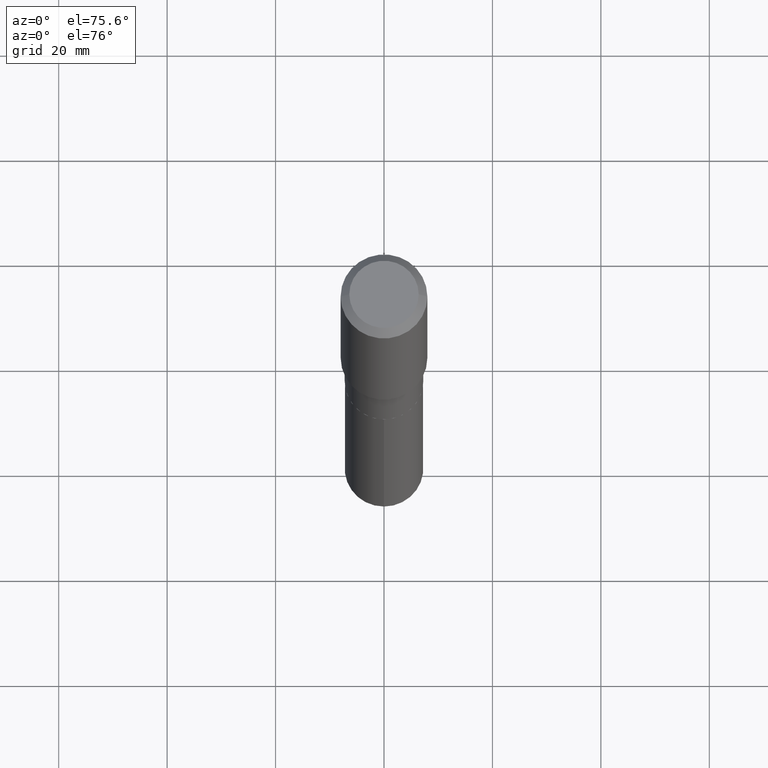
[diagram: clean part render]
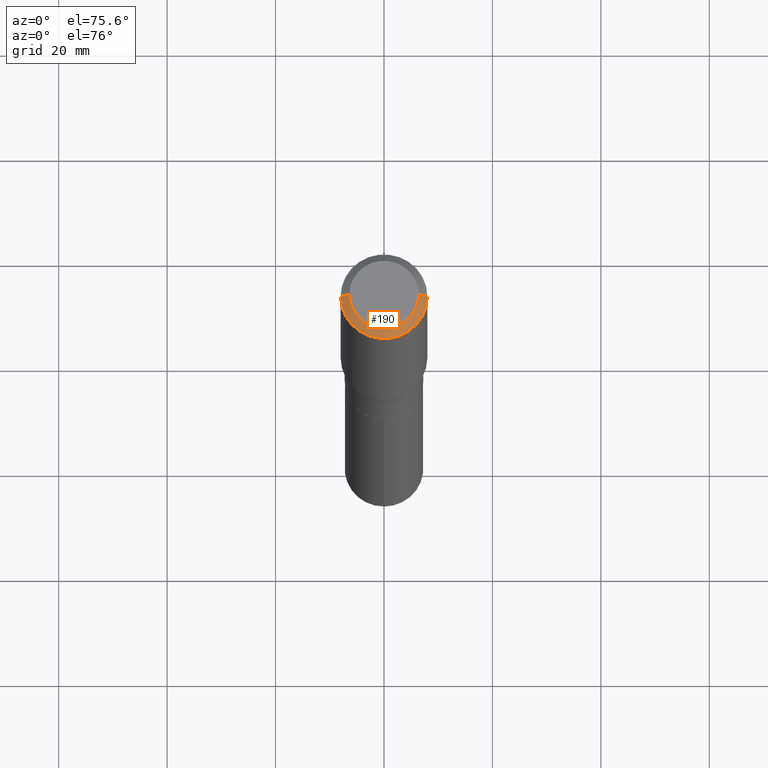
[diagram: same view with one face highlighted and labeled with its STEP entity id]
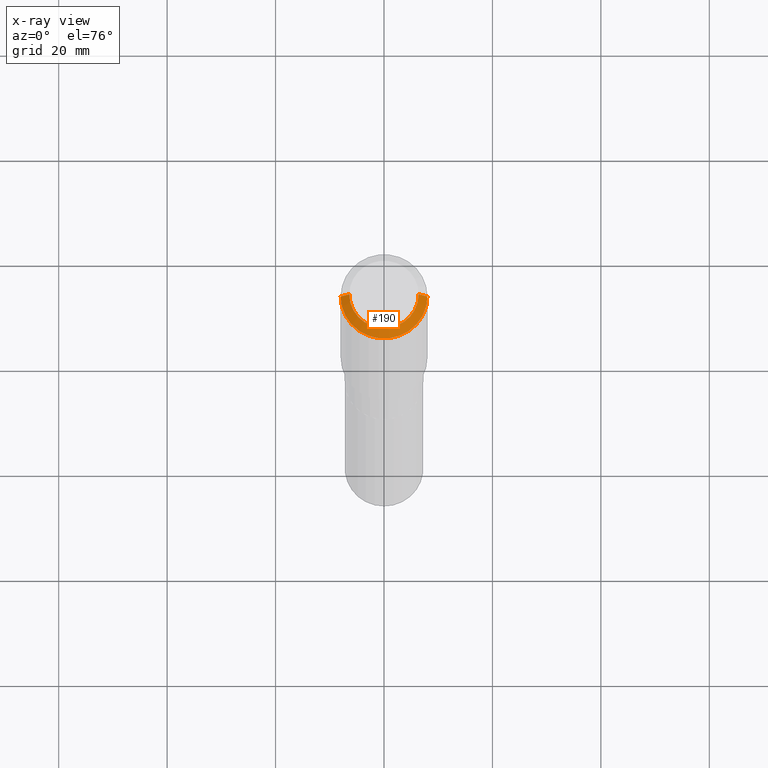
[diagram: x-ray of the same camera — body ghosted, the highlighted face saturated]
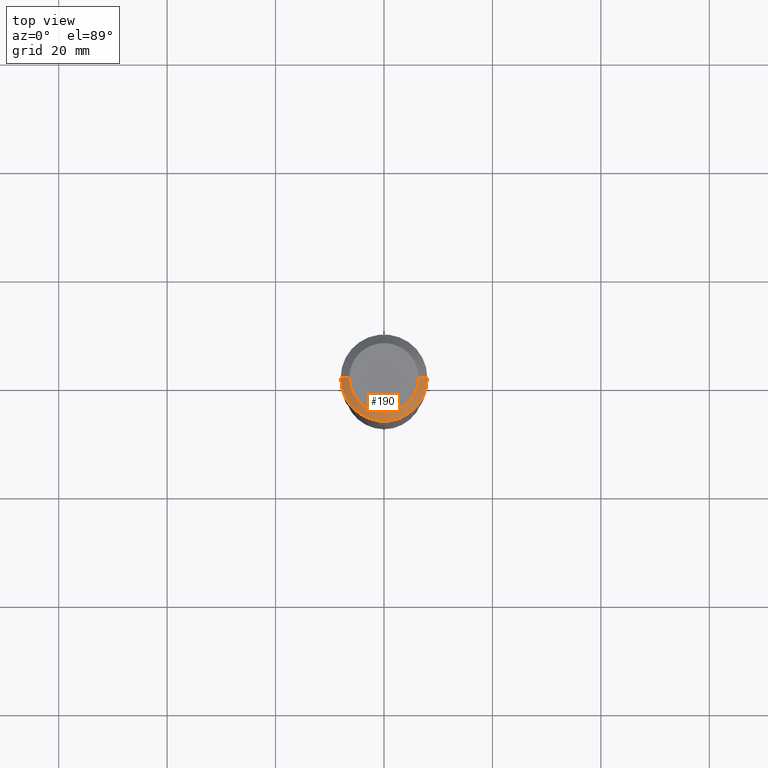
[diagram: same view with one face highlighted and labeled with its STEP entity id]
A machine part, auxiliary view. The second image highlights one B-rep face of the part: STEP entity #190.
The next image is the same camera in x-ray: the body ghosted, the highlighted face saturated — about 0% of this face is hidden behind the body in this view.
A second angle (top view) of the same face is appended — the face is thin or edge-on in the first view.
In plain terms, the highlighted conical surface has half-angle 45 deg.
Its self-contained STEP definition (entity closure, byte-faithful):
#7 = DIRECTION ( 'NONE',  ( 1.000000000000000000, -6.982962677686266711E-15, 0.000000000000000000 ) ) ;
#11 = ORIENTED_EDGE ( 'NONE', *, *, #407, .T. ) ;
#13 = FACE_OUTER_BOUND ( 'NONE', #162, .T. ) ;
#21 = DIRECTION ( 'NONE',  ( -1.000000000000000000, 6.982962677686266711E-15, 0.000000000000000000 ) ) ;
#43 = CARTESIAN_POINT ( 'NONE',  ( -0.2519600000000000173, 1.869391481036695286E-15, 3.855188123703182704E-18 ) ) ;
#61 = AXIS2_PLACEMENT_3D ( 'NONE', #358, #166, #321 ) ;
#79 = CARTESIAN_POINT ( 'NONE',  ( -0.3149500000000000077, 1.979355685803558833E-15, -0.06299000000000037902 ) ) ;
#82 = CARTESIAN_POINT ( 'NONE',  ( 0.3149500000000000077, -2.419212504871020909E-15, -0.06299000000000037902 ) ) ;
#92 = CARTESIAN_POINT ( 'NONE',  ( -0.3149500000000000077, -1.107665615196371650E-15, -0.06299000000000037902 ) ) ;
#97 = CARTESIAN_POINT ( 'NONE',  ( 0.3149500000000000077, -2.380642253931875190E-15, -0.06299000000000037902 ) ) ;
#138 = LINE ( 'NONE', #97, #445 ) ;
#158 = DIRECTION ( 'NONE',  ( -0.7071067811865453523, 2.468850131082234184E-15, -0.7071067811865496822 ) ) ;
#162 = EDGE_LOOP ( 'NONE', ( #337, #417, #230, #11 ) ) ;
#166 = DIRECTION ( 'NONE',  ( -2.445468806185136597E-29, 3.491481338843145583E-15, 1.000000000000000000 ) ) ;
#177 = VERTEX_POINT ( 'NONE', #92 ) ;
#190 = ADVANCED_FACE ( 'NONE', ( #13 ), #429, .T. ) ;
#208 = DIRECTION ( 'NONE',  ( 2.445468806185136597E-29, -3.491481338843145583E-15, -1.000000000000000000 ) ) ;
#219 = EDGE_CURVE ( 'NONE', #415, #478, #224, .T. ) ;
#224 = CIRCLE ( 'NONE', #61, 0.2519600000000000173 ) ;
#230 = ORIENTED_EDGE ( 'NONE', *, *, #418, .T. ) ;
#249 = EDGE_CURVE ( 'NONE', #478, #438, #138, .T. ) ;
#263 = AXIS2_PLACEMENT_3D ( 'NONE', #363, #208, #21 ) ;
#292 = DIRECTION ( 'NONE',  ( 0.7071067811865453523, -7.319954787623248157E-15, -0.7071067811865496822 ) ) ;
#321 = DIRECTION ( 'NONE',  ( 1.000000000000000000, -6.982962677686266711E-15, 4.876115136096691995E-29 ) ) ;
#337 = ORIENTED_EDGE ( 'NONE', *, *, #249, .F. ) ;
#349 = CARTESIAN_POINT ( 'NONE',  ( 1.540400801016026505E-30, -2.199284095337310628E-16, -0.06299000000000037902 ) ) ;
#358 = CARTESIAN_POINT ( 'NONE',  ( -9.427742298522569579E-47, 1.346031739168368629E-32, 3.855188123715871501E-18 ) ) ;
#363 = CARTESIAN_POINT ( 'NONE',  ( 1.540400801016026505E-30, -2.199284095337310628E-16, -0.06299000000000037902 ) ) ;
#385 = DIRECTION ( 'NONE',  ( -2.445468806185136597E-29, 3.491481338843145583E-15, 1.000000000000000000 ) ) ;
#387 = CARTESIAN_POINT ( 'NONE',  ( 0.2519600000000000173, -2.054606664725195058E-15, 3.855188123729206640E-18 ) ) ;
#407 = EDGE_CURVE ( 'NONE', #177, #438, #454, .T. ) ;
#415 = VERTEX_POINT ( 'NONE', #43 ) ;
#417 = ORIENTED_EDGE ( 'NONE', *, *, #219, .F. ) ;
#418 = EDGE_CURVE ( 'NONE', #415, #177, #487, .T. ) ;
#429 = CONICAL_SURFACE ( 'NONE', #263, 0.3149500000000000077, 0.7853981633974452814 ) ;
#438 = VERTEX_POINT ( 'NONE', #82 ) ;
#445 = VECTOR ( 'NONE', #292, 39.37007874015748143 ) ;
#454 = CIRCLE ( 'NONE', #471, 0.3149500000000000077 ) ;
#471 = AXIS2_PLACEMENT_3D ( 'NONE', #349, #385, #7 ) ;
#478 = VERTEX_POINT ( 'NONE', #387 ) ;
#487 = LINE ( 'NONE', #79, #488 ) ;
#488 = VECTOR ( 'NONE', #158, 39.37007874015748143 ) ;